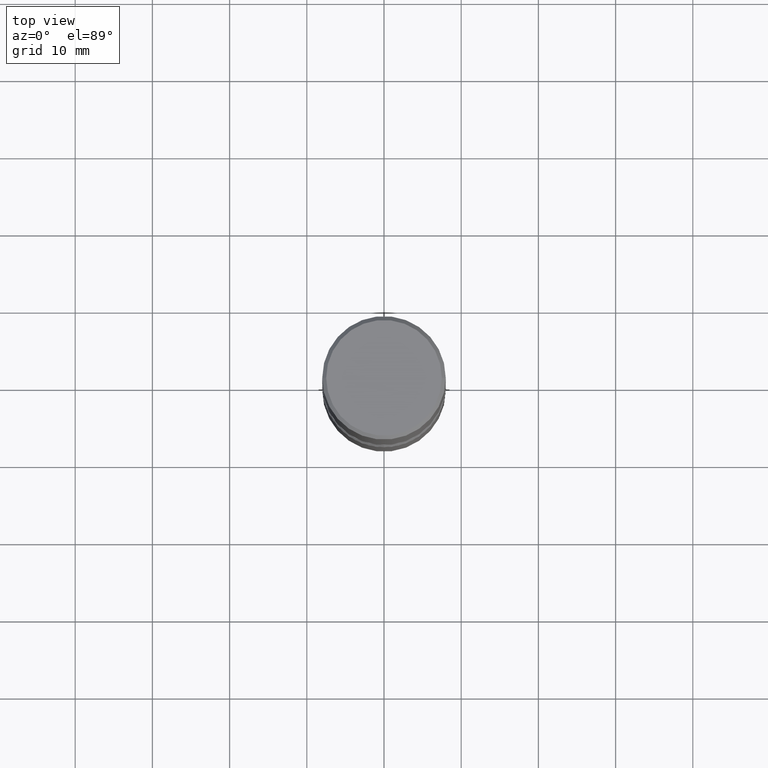
[diagram: clean part render]
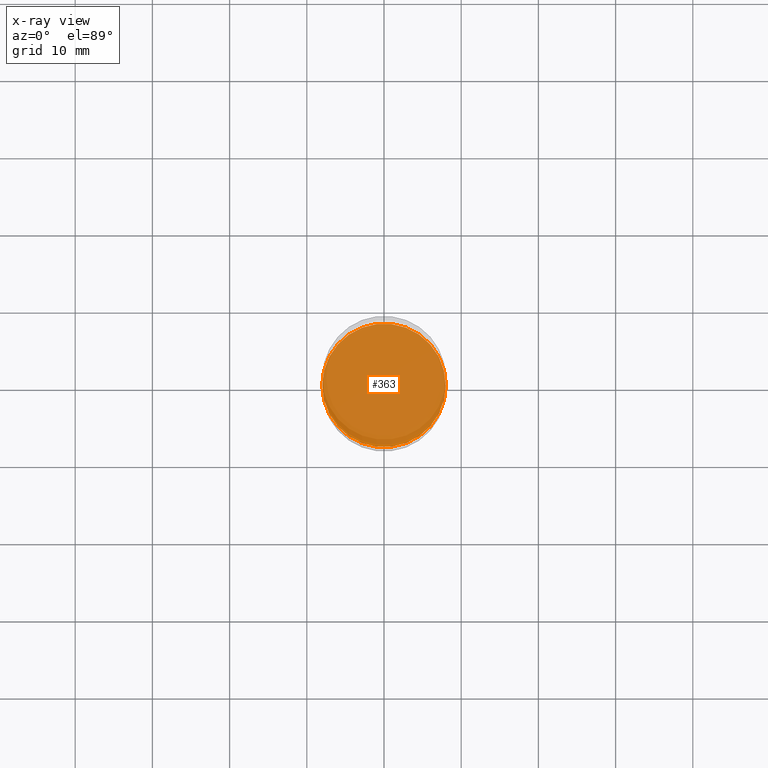
[diagram: x-ray — body ghosted, one internal face saturated and labeled with its STEP entity id]
A machine part, top view, then the same camera in x-ray: the body is ghosted and one INTERNAL B-rep face — a face not visible from any outside direction — is saturated and labeled: STEP entity #363.
In plain terms, the highlighted planar face has unit normal (0, -0, -1).
Its self-contained STEP definition (entity closure, byte-faithful):
#15 = FACE_OUTER_BOUND ( 'NONE', #270, .T. ) ;
#47 = EDGE_CURVE ( 'NONE', #355, #417, #544, .T. ) ;
#55 = CARTESIAN_POINT ( 'NONE',  ( -0.3149500000000001743, -7.865619778000917844E-15, -2.244100000000000872 ) ) ;
#58 = DIRECTION ( 'NONE',  ( 1.000000000000000000, -6.982962677686265922E-15, 0.000000000000000000 ) ) ;
#70 = DIRECTION ( 'NONE',  ( -2.445468806185136597E-29, 3.491481338843145583E-15, 1.000000000000000000 ) ) ;
#93 = AXIS2_PLACEMENT_3D ( 'NONE', #381, #243, #58 ) ;
#152 = DIRECTION ( 'NONE',  ( 2.438088387897960049E-29, -3.491481338843145188E-15, -1.000000000000000000 ) ) ;
#214 = AXIS2_PLACEMENT_3D ( 'NONE', #494, #152, #362 ) ;
#225 = AXIS2_PLACEMENT_3D ( 'NONE', #335, #70, #298 ) ;
#243 = DIRECTION ( 'NONE',  ( -2.445468806185136597E-29, 3.491481338843145583E-15, 1.000000000000000000 ) ) ;
#270 = EDGE_LOOP ( 'NONE', ( #379, #327 ) ) ;
#298 = DIRECTION ( 'NONE',  ( 1.000000000000000000, -6.982962677686265922E-15, 0.000000000000000000 ) ) ;
#327 = ORIENTED_EDGE ( 'NONE', *, *, #47, .T. ) ;
#329 = PLANE ( 'NONE',  #214 ) ;
#335 = CARTESIAN_POINT ( 'NONE',  ( 5.487876547960068115E-29, -7.835233272497907073E-15, -2.244100000000000872 ) ) ;
#340 = EDGE_CURVE ( 'NONE', #417, #355, #405, .T. ) ;
#355 = VERTEX_POINT ( 'NONE', #55 ) ;
#362 = DIRECTION ( 'NONE',  ( -1.000000000000000000, 6.982962677686265922E-15, -4.876176775795935793E-29 ) ) ;
#363 = ADVANCED_FACE ( 'NONE', ( #15 ), #329, .F. ) ;
#379 = ORIENTED_EDGE ( 'NONE', *, *, #340, .T. ) ;
#381 = CARTESIAN_POINT ( 'NONE',  ( 5.487876547960068115E-29, -7.835233272497907073E-15, -2.244100000000000872 ) ) ;
#405 = CIRCLE ( 'NONE', #93, 0.3149500000000001743 ) ;
#417 = VERTEX_POINT ( 'NONE', #439 ) ;
#439 = CARTESIAN_POINT ( 'NONE',  ( 0.3149500000000001743, -1.003451736783519694E-14, -2.244100000000000872 ) ) ;
#494 = CARTESIAN_POINT ( 'NONE',  ( 6.847118732139449888E-29, -5.888721101492358941E-15, -2.244100000000001316 ) ) ;
#544 = CIRCLE ( 'NONE', #225, 0.3149500000000001743 ) ;